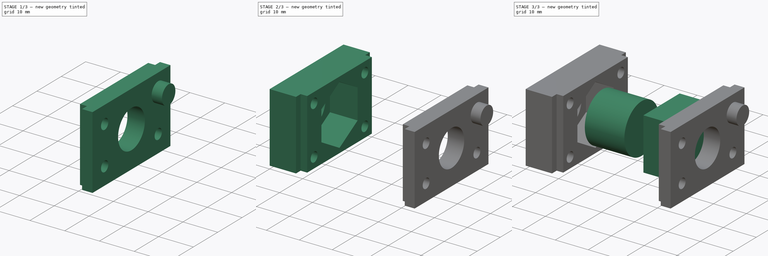
[diagram: build sequence overview — one tinted view per stage of 3, left to right]
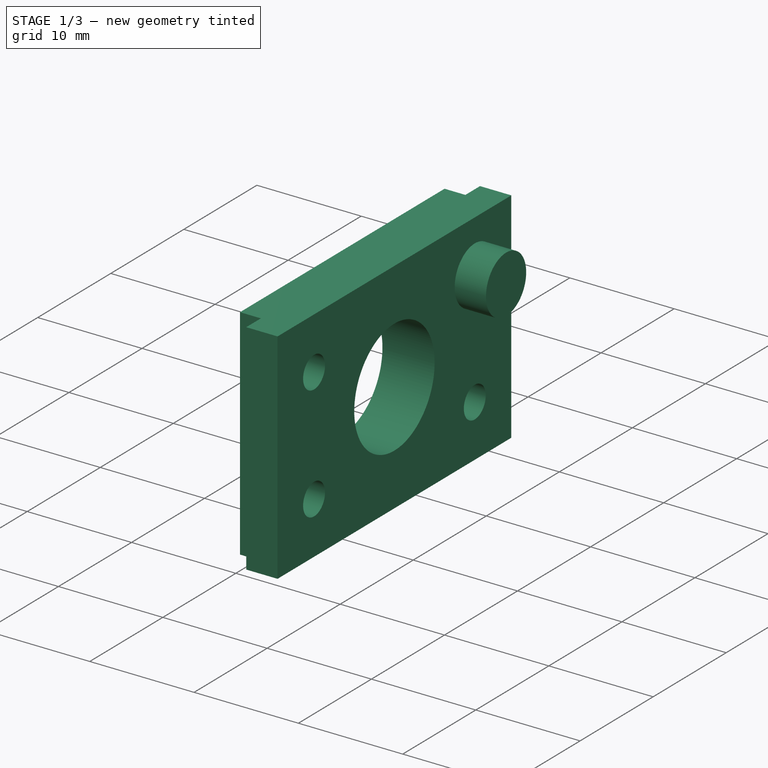
[diagram: stage 1 of 3 — iso view after this stage's code; geometry added in this stage tinted green]
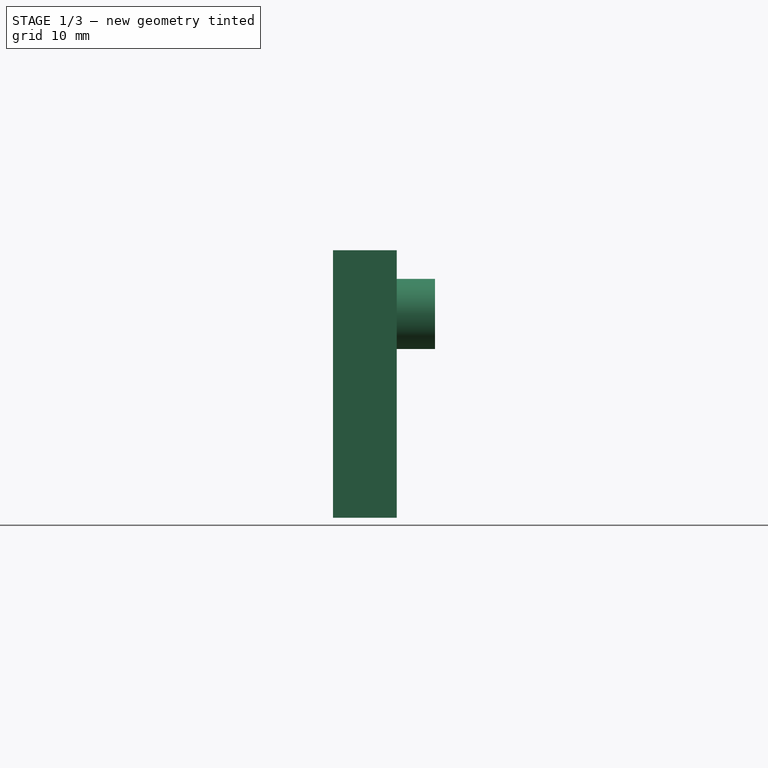
[diagram: stage 1 of 3 — front view after this stage's code; geometry added in this stage tinted green]
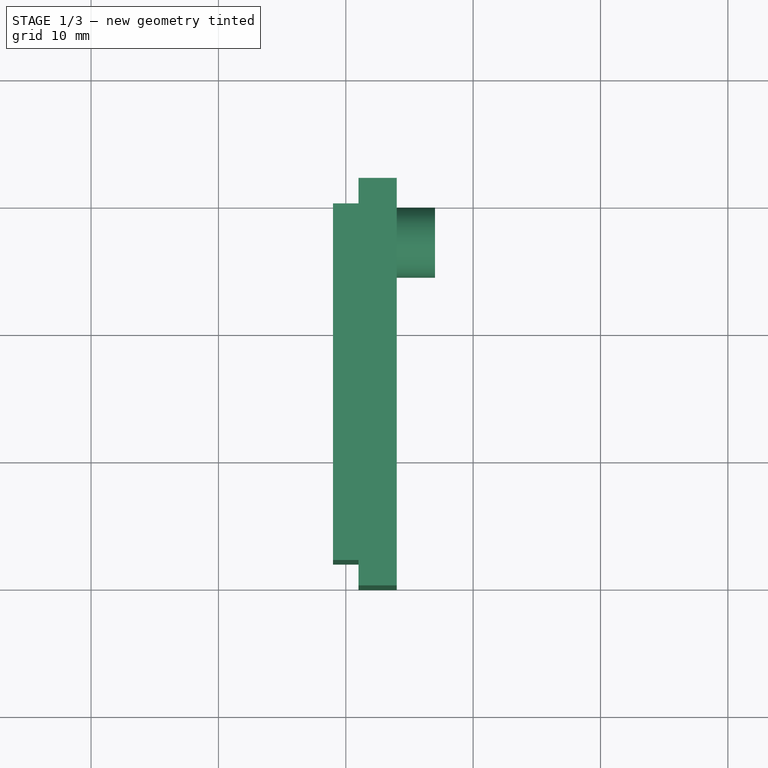
[diagram: stage 1 of 3 — top view after this stage's code; geometry added in this stage tinted green]
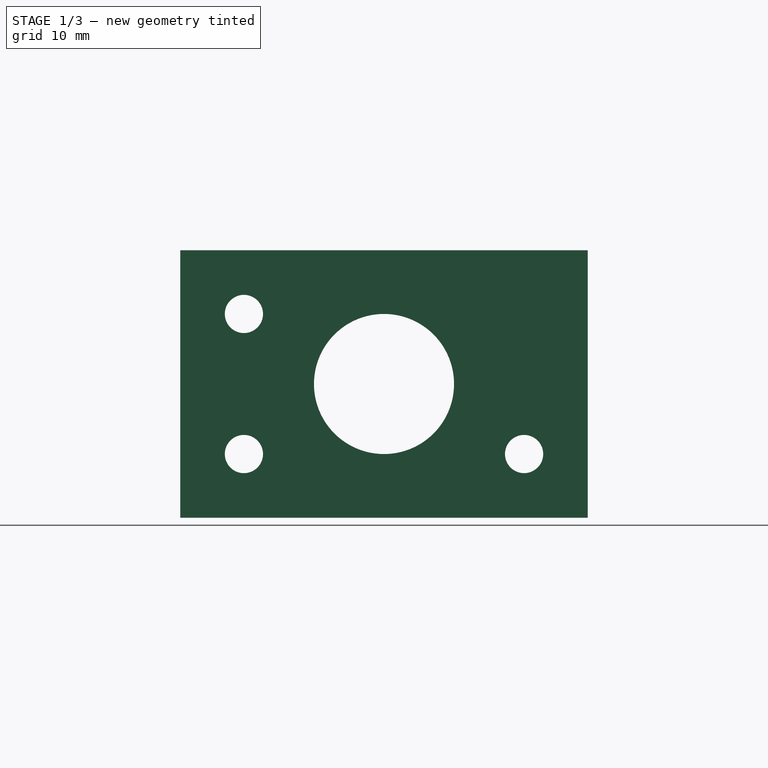
[diagram: stage 1 of 3 — right view after this stage's code; geometry added in this stage tinted green]
FCSTD DOCUMENT
Label: A_T
objects: Part::Feature×9, PartDesign::Pocket×3, Part::Cylinder×2, Part::Box×1, Sketcher::SketchObject×1
note: 19 computed .brp shape members not serialized (recipe doc carries the construction recipe); baked Part::Feature solids carry a one-line shape summary decoded from their .brp

FEATURE [PartDesign::Pocket] Pocket005  label="Pocket002"
  Length = 2
  Placement = pos=(44,0,0) rot=(0,-1,0;1.5708rad)
  Type = 0
FEATURE [Part::Cylinder] Cylinder001  label="DIN912_M3_001"
  Angle = 360
  Height = 3
  Placement = pos=(44,27,16) rot=(0,1,0;1.5708rad)
  Radius = 2.75
FEATURE [Part::Feature] Cylinder002  label="DIN912_M3_002"
  Placement = pos=(-3,27,17.8595) rot=(0,1,0;1.5708rad)
  shape: bbox 3 x 5.5 x 5.5 mm, 3 faces (baked)
FEATURE [Part::Feature] Cylinder003  label="DIN912_M3_003"
  Placement = pos=(44,5,16) rot=(0,1,0;1.5708rad)
  shape: bbox 3 x 5.5 x 5.5 mm, 3 faces (baked)
FEATURE [Part::Feature] Cylinder004  label="DIN912_M3_004"
  Placement = pos=(-3,5,17.8595) rot=(0,1,0;1.5708rad)
  shape: bbox 3 x 5.5 x 5.5 mm, 3 faces (baked)
FEATURE [Part::Feature] Cylinder005  label="DIN912_M3_005"
  Placement = pos=(44,5,5) rot=(0,1,0;1.5708rad)
  shape: bbox 3 x 5.5 x 5.5 mm, 3 faces (baked)
FEATURE [Part::Feature] Cylinder006  label="DIN912_M3_006"
  Placement = pos=(-3,27,3.1405) rot=(0,1,0;1.5708rad)
  shape: bbox 3 x 5.5 x 5.5 mm, 3 faces (baked)
FEATURE [Part::Feature] Cylinder007  label="DIN912_M3_007"
  Placement = pos=(44,27,5) rot=(0,1,0;1.5708rad)
  shape: bbox 3 x 5.5 x 5.5 mm, 3 faces (baked)
FEATURE [Part::Feature] Cylinder008  label="DIN912_M3_008"
  Placement = pos=(-3,5,3.1405) rot=(0,1,0;1.5708rad)
  shape: bbox 3 x 5.5 x 5.5 mm, 3 faces (baked)
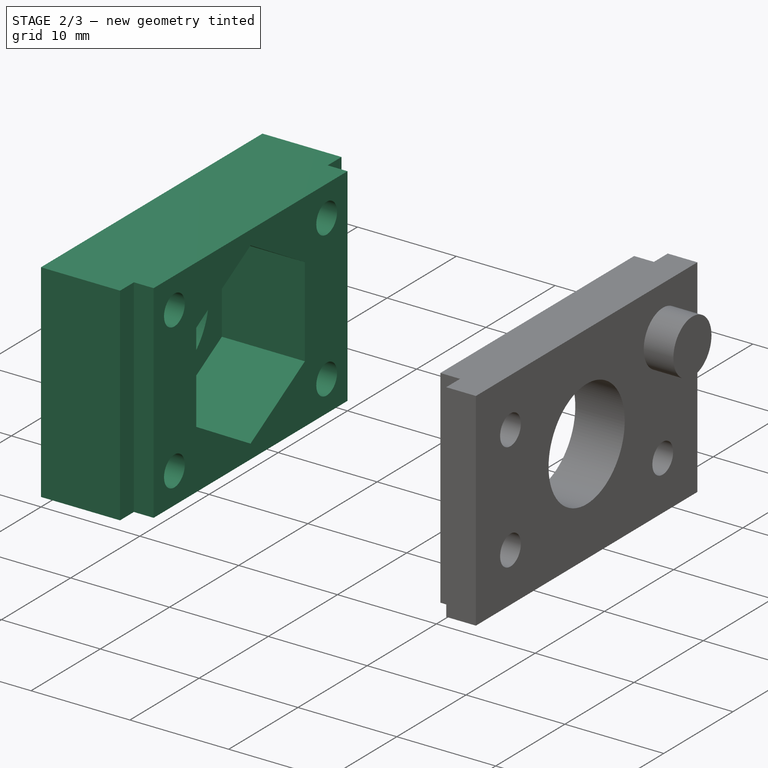
[diagram: stage 2 of 3 — iso view after this stage's code; geometry added in this stage tinted green]
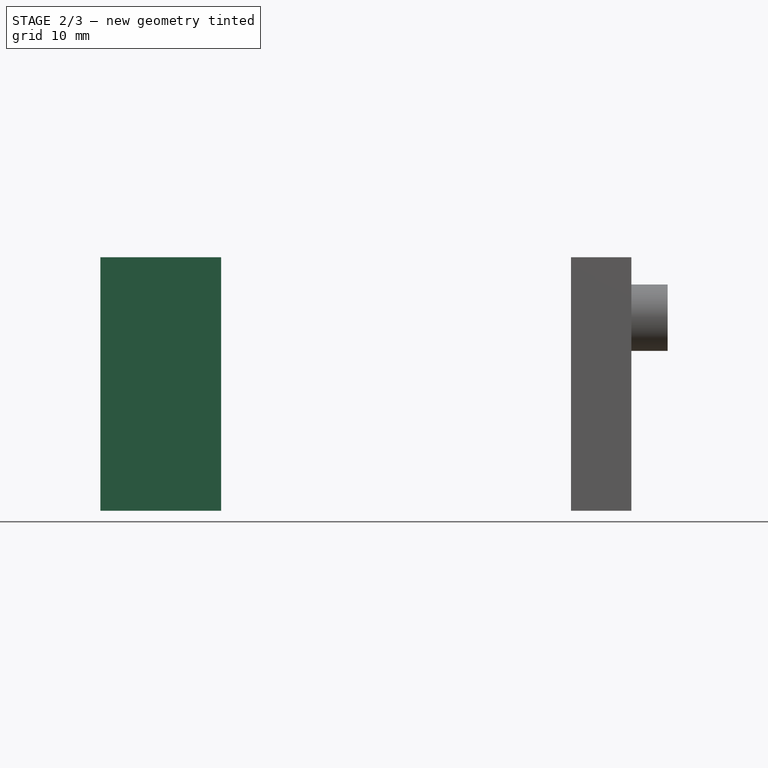
[diagram: stage 2 of 3 — front view after this stage's code; geometry added in this stage tinted green]
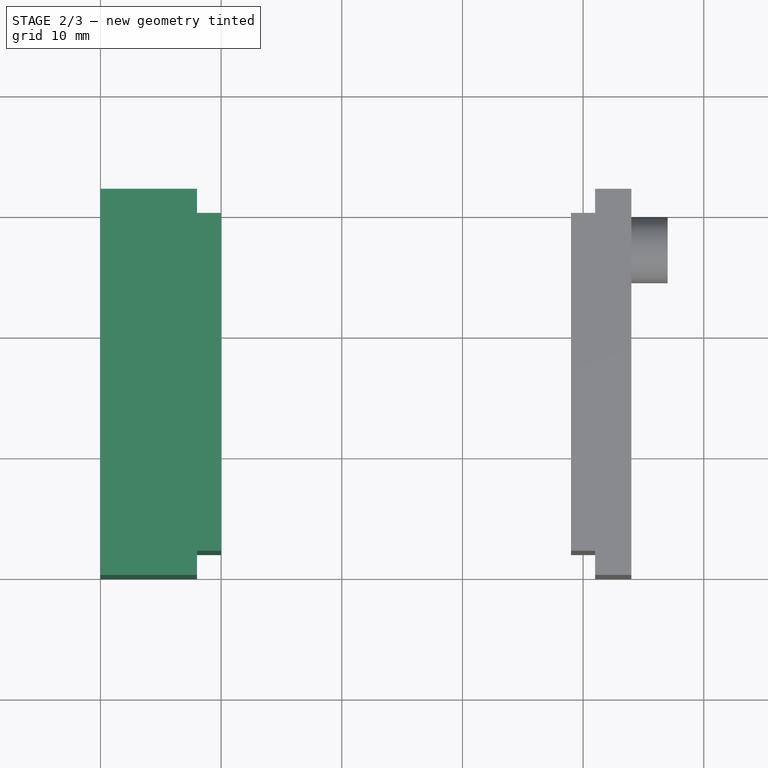
[diagram: stage 2 of 3 — top view after this stage's code; geometry added in this stage tinted green]
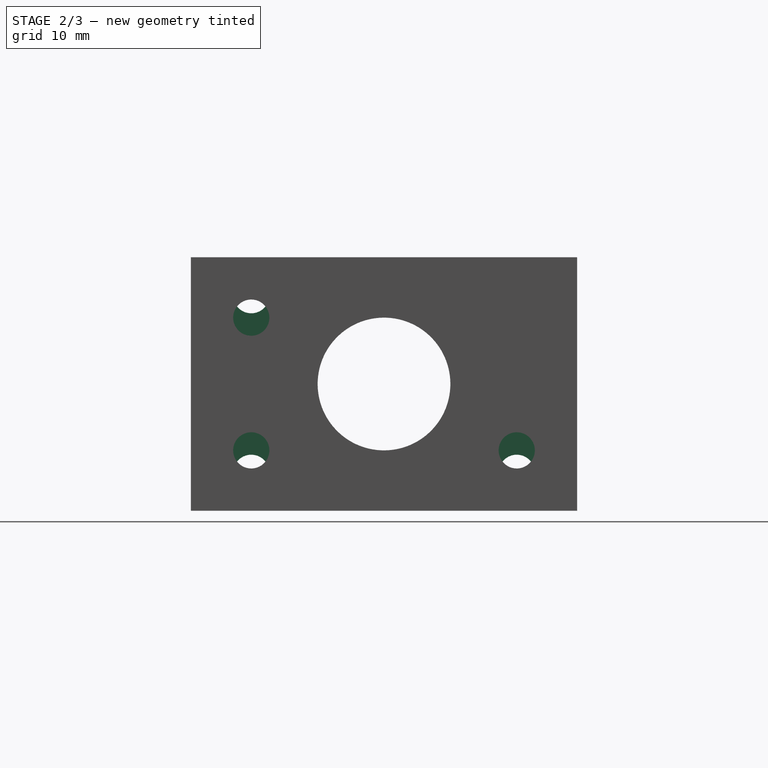
[diagram: stage 2 of 3 — right view after this stage's code; geometry added in this stage tinted green]
FEATURE [PartDesign::Pocket] Pocket001  label="A_E_D"
  Length = 5
  Placement = pos=(0,0,21) rot=(0,1,0;1.5708rad)
  Type = 1
FEATURE [Part::Feature] Pocket  label="Pocket005"
  Placement = pos=(8,0,21) rot=(-1,0,0;1.5708rad)
  shape: bbox 33 x 10 x 21 mm, 18 faces (baked)
FEATURE [Part::Feature] Pocket003  label="Pocket006"
  Placement = pos=(8,32,0) rot=(1,0,0;1.5708rad)
  shape: bbox 33 x 10 x 21 mm, 18 faces (baked)
FEATURE [Sketcher::SketchObject] Sketch
  Placement = pos=(0,0,21) rot=(-0.707107,0,0.707107;3.14159rad)
  Support = -> Pocket001 [Face9]
  sketch-geometry (1):
    g0: Circle CenterX=10.5 CenterY=-16 CenterZ=0 NormalX=0 NormalY=0 NormalZ=1 Radius=6
  constraints (3):
    c: DistanceX(g0) = 10.5
    c: DistanceY(g0) = -16
    c: Radius(g0) = 6
FEATURE [PartDesign::Pocket] Pocket004
  Length = 5
  Placement = pos=(0,0,21) rot=(0,1,0;1.5708rad)
  Sketch = -> Sketch
  Type = 1
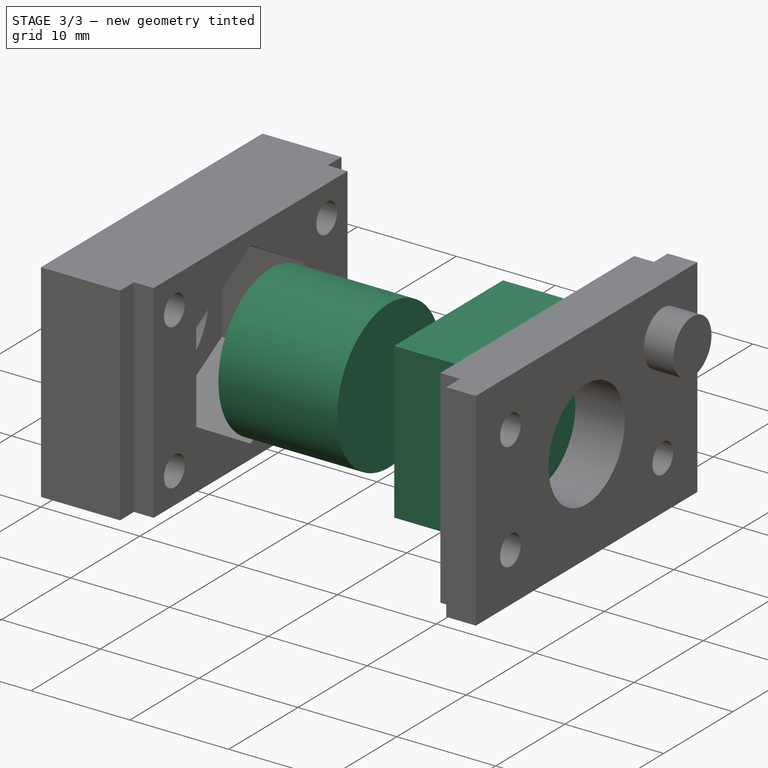
[diagram: stage 3 of 3 — iso view after this stage's code; geometry added in this stage tinted green]
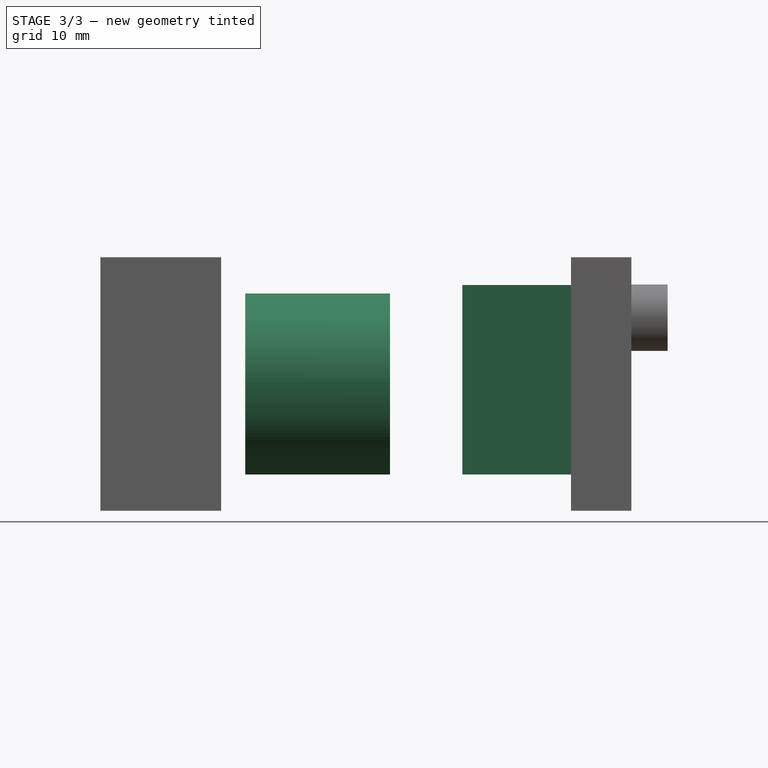
[diagram: stage 3 of 3 — front view after this stage's code; geometry added in this stage tinted green]
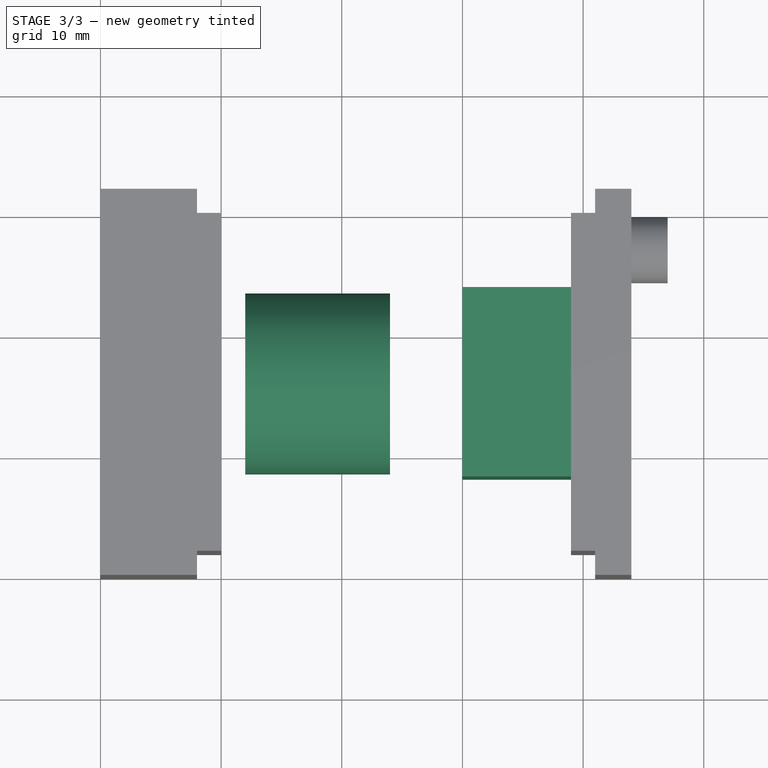
[diagram: stage 3 of 3 — top view after this stage's code; geometry added in this stage tinted green]
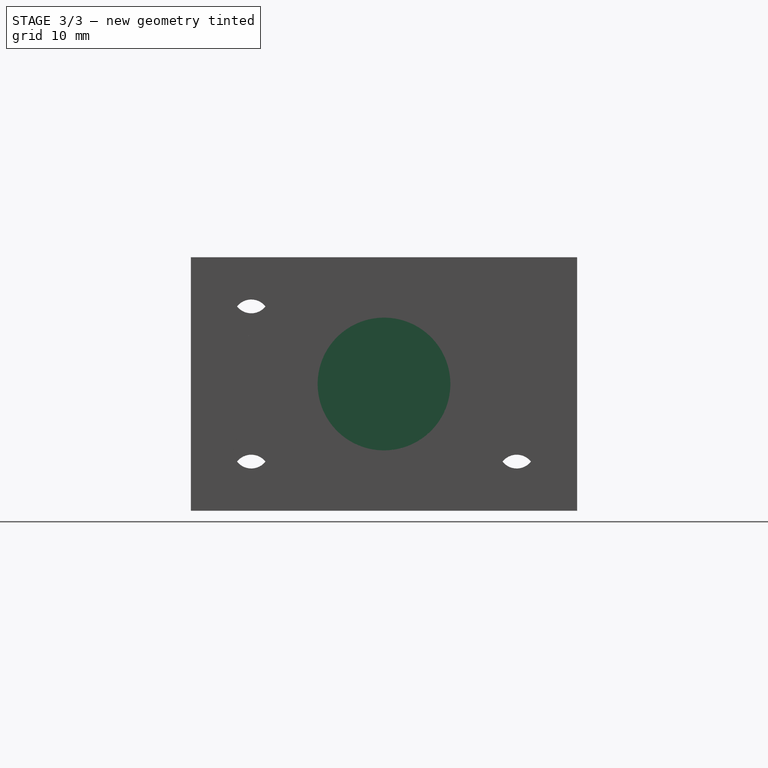
[diagram: stage 3 of 3 — right view after this stage's code; geometry added in this stage tinted green]
FEATURE [Part::Cylinder] Cylinder
  Angle = 360
  Height = 12
  Placement = pos=(12,16,10.5) rot=(0,1,0;1.5708rad)
  Radius = 7.5
FEATURE [Part::Box] Box
  Height = 15.7
  Length = 9
  Placement = pos=(30,8.2,3) rot=(0,0,1;0rad)
  Width = 15.7
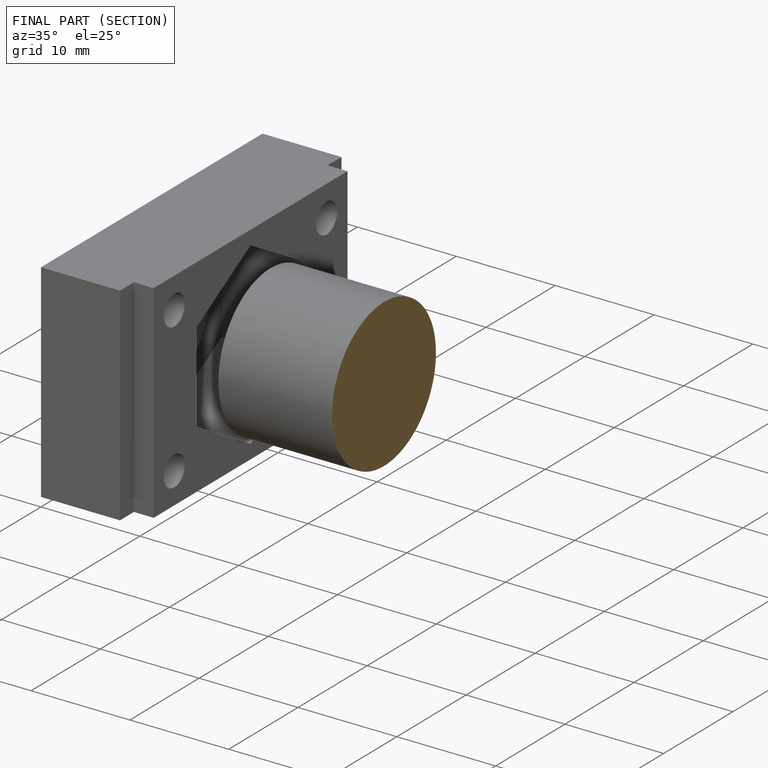
[diagram: finished part — half-section view (interior)]
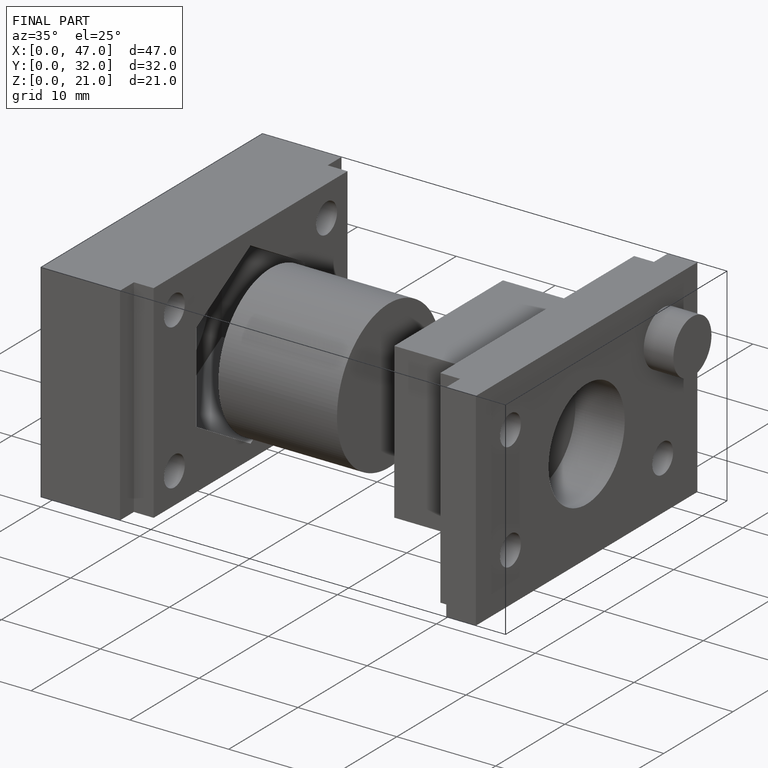
[diagram: finished part — iso view with bounding-box wireframe]
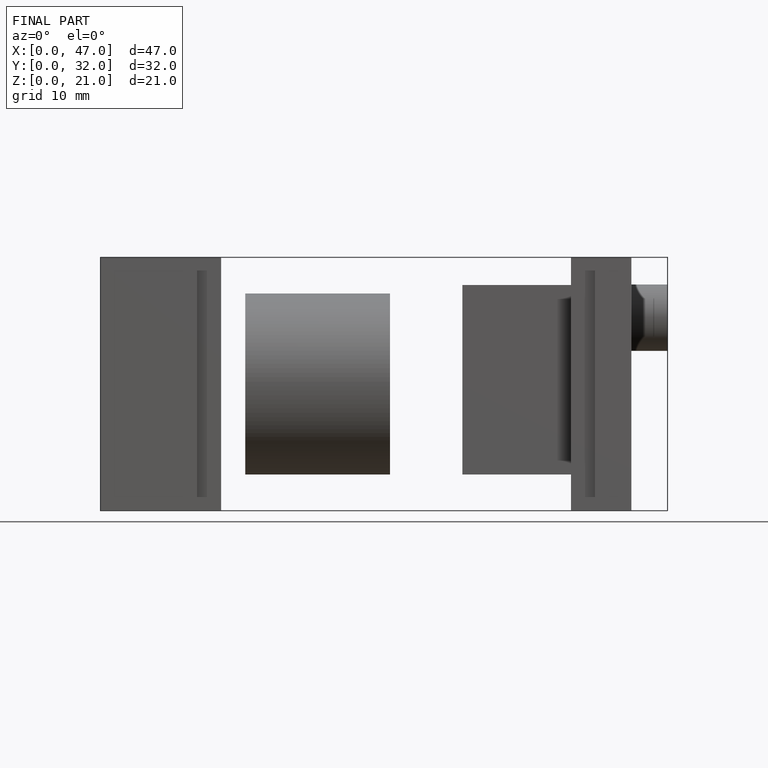
[diagram: finished part — front view with bounding-box wireframe]
